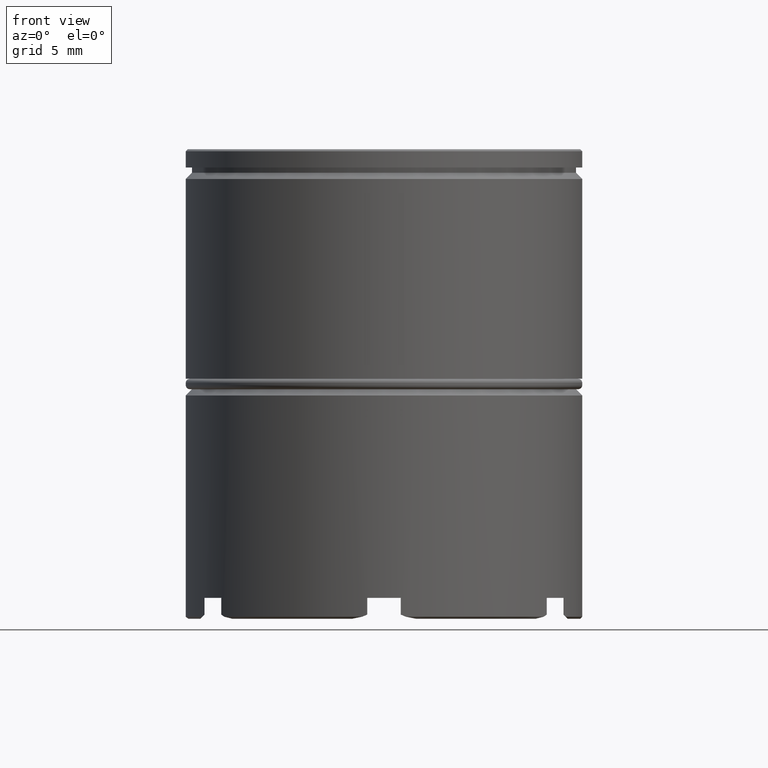
[diagram: clean part render]
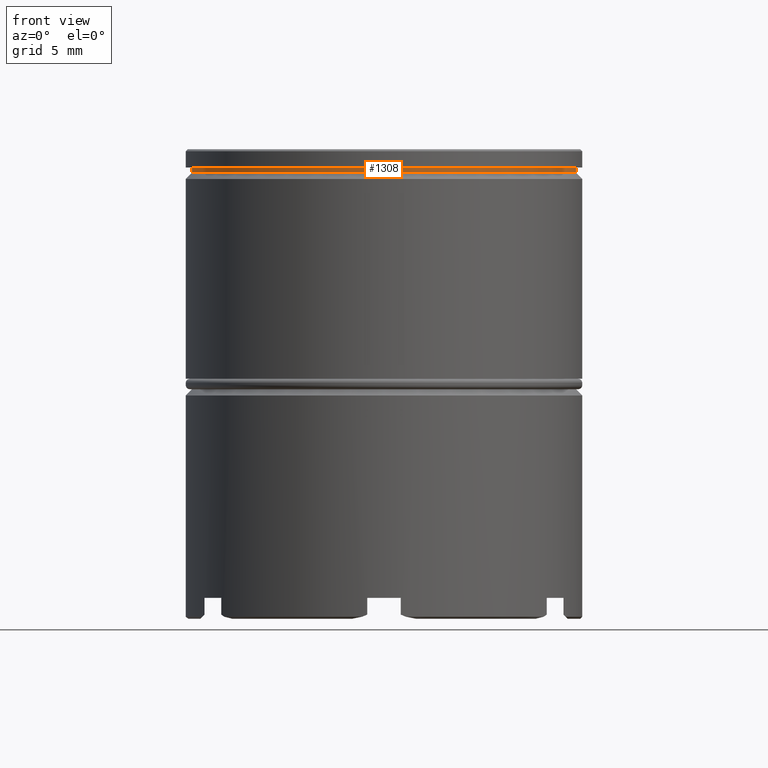
[diagram: same view with one face highlighted and labeled with its STEP entity id]
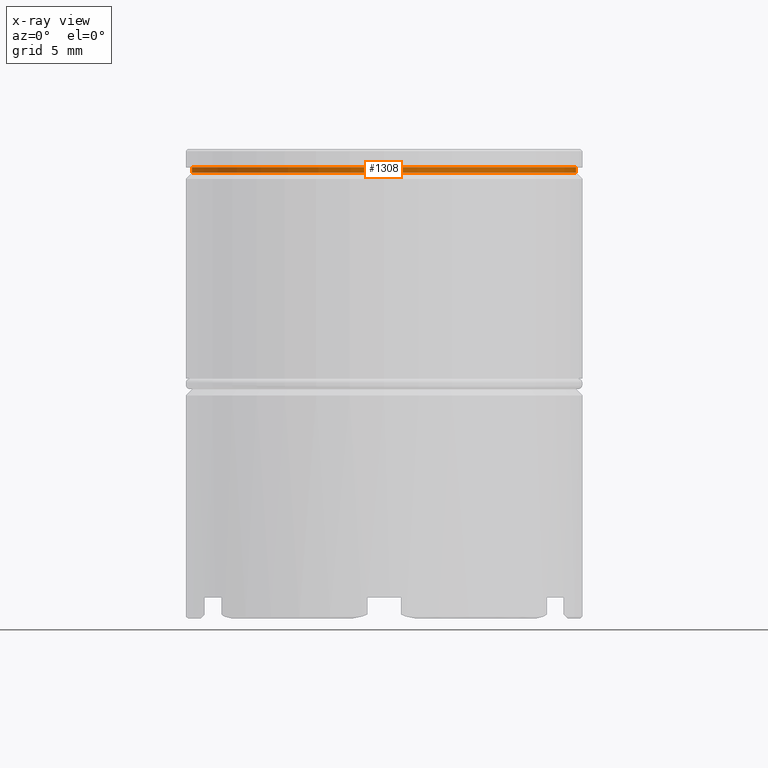
[diagram: x-ray of the same camera — body ghosted, the highlighted face saturated]
A machine part, front view. The second image highlights one B-rep face of the part: STEP entity #1308.
The next image is the same camera in x-ray: the body ghosted, the highlighted face saturated — about 0% of this face is hidden behind the body in this view.
In plain terms, the highlighted cylindrical surface (partial cylindrical patch) has radius 9.2 mm, axis along (-0, -0, 1).
Its self-contained STEP definition (entity closure, byte-faithful):
#48 = ORIENTED_EDGE ( 'NONE', *, *, #1558, .F. ) ;
#75 = CARTESIAN_POINT ( 'NONE',  ( 9.199999999999999289, 0.000000000000000000, -1.125000000000000222 ) ) ;
#83 = ORIENTED_EDGE ( 'NONE', *, *, #868, .F. ) ;
#152 = VERTEX_POINT ( 'NONE', #229 ) ;
#228 = EDGE_CURVE ( 'NONE', #364, #1005, #418, .T. ) ;
#229 = CARTESIAN_POINT ( 'NONE',  ( -9.199999999999999289, 1.126675055215564822E-15, -1.125000000000000222 ) ) ;
#281 = CARTESIAN_POINT ( 'NONE',  ( 0.000000000000000000, 0.000000000000000000, -1.125000000000000222 ) ) ;
#364 = VERTEX_POINT ( 'NONE', #75 ) ;
#376 = AXIS2_PLACEMENT_3D ( 'NONE', #281, #1271, #425 ) ;
#401 = AXIS2_PLACEMENT_3D ( 'NONE', #1560, #1596, #1086 ) ;
#402 = DIRECTION ( 'NONE',  ( -0.000000000000000000, -0.000000000000000000, 1.000000000000000000 ) ) ;
#418 = LINE ( 'NONE', #1275, #1435 ) ;
#425 = DIRECTION ( 'NONE',  ( 1.000000000000000000, 0.000000000000000000, 0.000000000000000000 ) ) ;
#534 = DIRECTION ( 'NONE',  ( -0.000000000000000000, -0.000000000000000000, 1.000000000000000000 ) ) ;
#557 = VERTEX_POINT ( 'NONE', #704 ) ;
#683 = FACE_OUTER_BOUND ( 'NONE', #1506, .T. ) ;
#704 = CARTESIAN_POINT ( 'NONE',  ( -9.199999999999999289, 1.126675055215564822E-15, -0.8749999999999998890 ) ) ;
#719 = CIRCLE ( 'NONE', #376, 9.199999999999999289 ) ;
#868 = EDGE_CURVE ( 'NONE', #557, #1005, #878, .T. ) ;
#878 = CIRCLE ( 'NONE', #401, 9.199999999999999289 ) ;
#998 = EDGE_CURVE ( 'NONE', #152, #364, #719, .T. ) ;
#1005 = VERTEX_POINT ( 'NONE', #1440 ) ;
#1035 = CYLINDRICAL_SURFACE ( 'NONE', #1294, 9.199999999999999289 ) ;
#1058 = CARTESIAN_POINT ( 'NONE',  ( 0.000000000000000000, 0.000000000000000000, 0.000000000000000000 ) ) ;
#1081 = ORIENTED_EDGE ( 'NONE', *, *, #228, .T. ) ;
#1086 = DIRECTION ( 'NONE',  ( 1.000000000000000000, 0.000000000000000000, 0.000000000000000000 ) ) ;
#1139 = ORIENTED_EDGE ( 'NONE', *, *, #998, .T. ) ;
#1155 = CARTESIAN_POINT ( 'NONE',  ( -9.199999999999999289, 1.126675055215564822E-15, 0.000000000000000000 ) ) ;
#1195 = VECTOR ( 'NONE', #534, 1000.000000000000000 ) ;
#1271 = DIRECTION ( 'NONE',  ( -0.000000000000000000, -0.000000000000000000, 1.000000000000000000 ) ) ;
#1275 = CARTESIAN_POINT ( 'NONE',  ( 9.199999999999999289, 0.000000000000000000, 0.000000000000000000 ) ) ;
#1280 = LINE ( 'NONE', #1155, #1195 ) ;
#1294 = AXIS2_PLACEMENT_3D ( 'NONE', #1058, #1549, #1567 ) ;
#1308 = ADVANCED_FACE ( 'NONE', ( #683 ), #1035, .T. ) ;
#1435 = VECTOR ( 'NONE', #402, 1000.000000000000000 ) ;
#1440 = CARTESIAN_POINT ( 'NONE',  ( 9.199999999999999289, 0.000000000000000000, -0.8749999999999998890 ) ) ;
#1506 = EDGE_LOOP ( 'NONE', ( #48, #1139, #1081, #83 ) ) ;
#1549 = DIRECTION ( 'NONE',  ( -0.000000000000000000, -0.000000000000000000, 1.000000000000000000 ) ) ;
#1558 = EDGE_CURVE ( 'NONE', #152, #557, #1280, .T. ) ;
#1560 = CARTESIAN_POINT ( 'NONE',  ( 0.000000000000000000, 0.000000000000000000, -0.8749999999999998890 ) ) ;
#1567 = DIRECTION ( 'NONE',  ( 1.000000000000000000, 0.000000000000000000, 0.000000000000000000 ) ) ;
#1596 = DIRECTION ( 'NONE',  ( -0.000000000000000000, -0.000000000000000000, 1.000000000000000000 ) ) ;